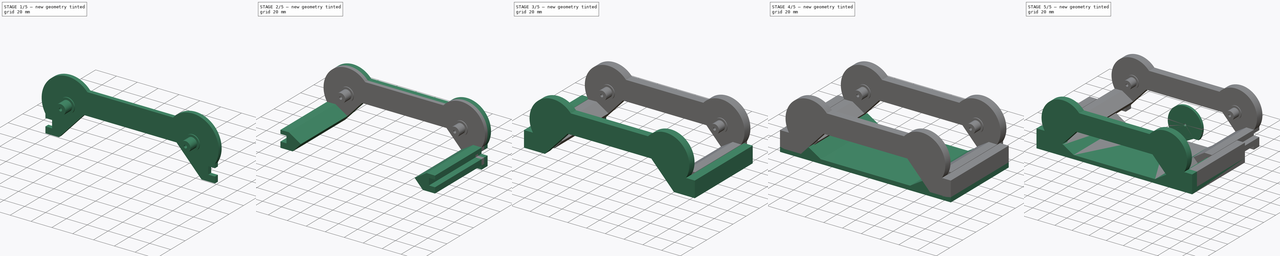
[diagram: build sequence overview — one tinted view per stage of 5, left to right]
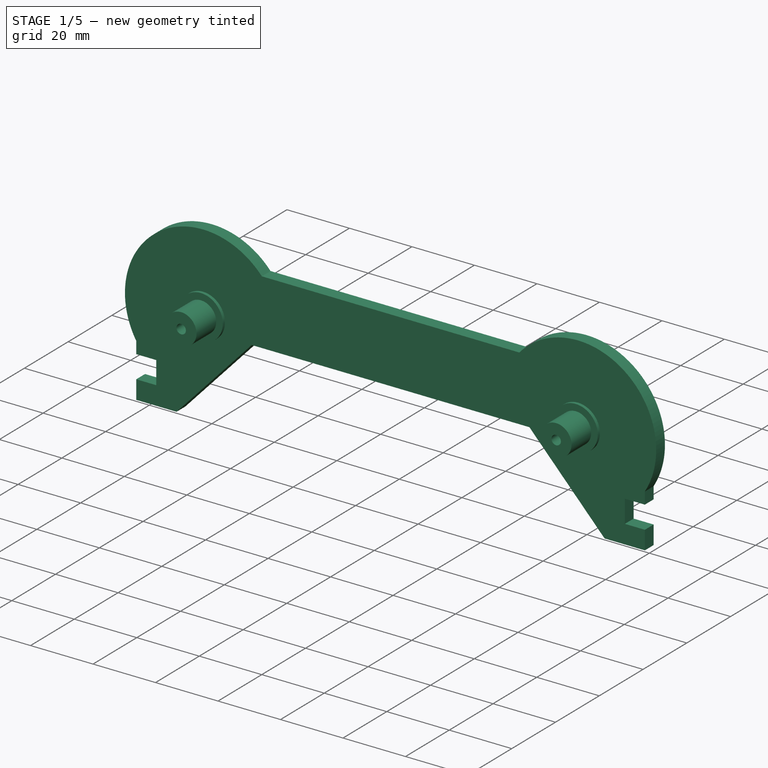
[diagram: stage 1 of 5 — iso view after this stage's code; geometry added in this stage tinted green]
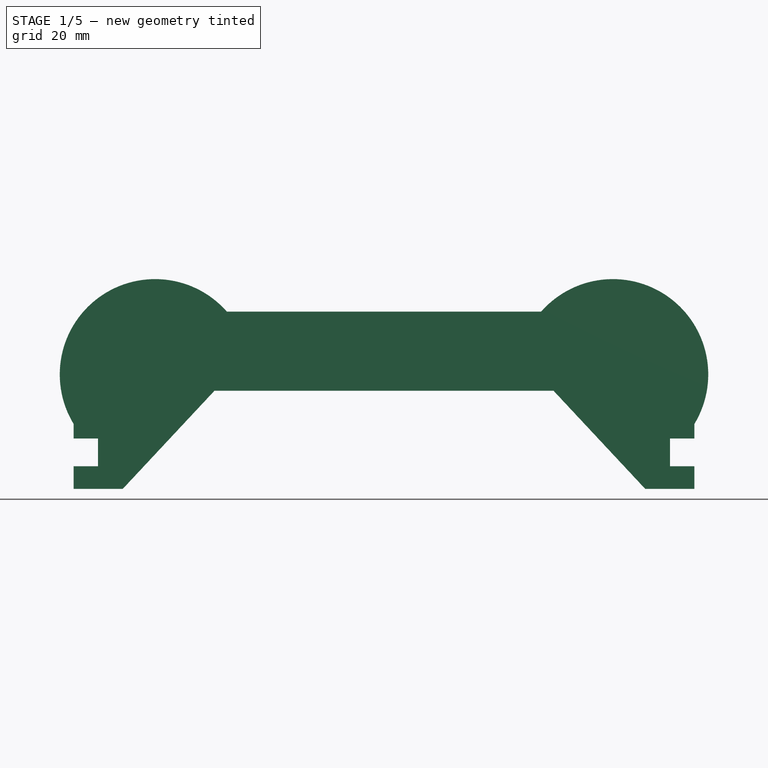
[diagram: stage 1 of 5 — front view after this stage's code; geometry added in this stage tinted green]
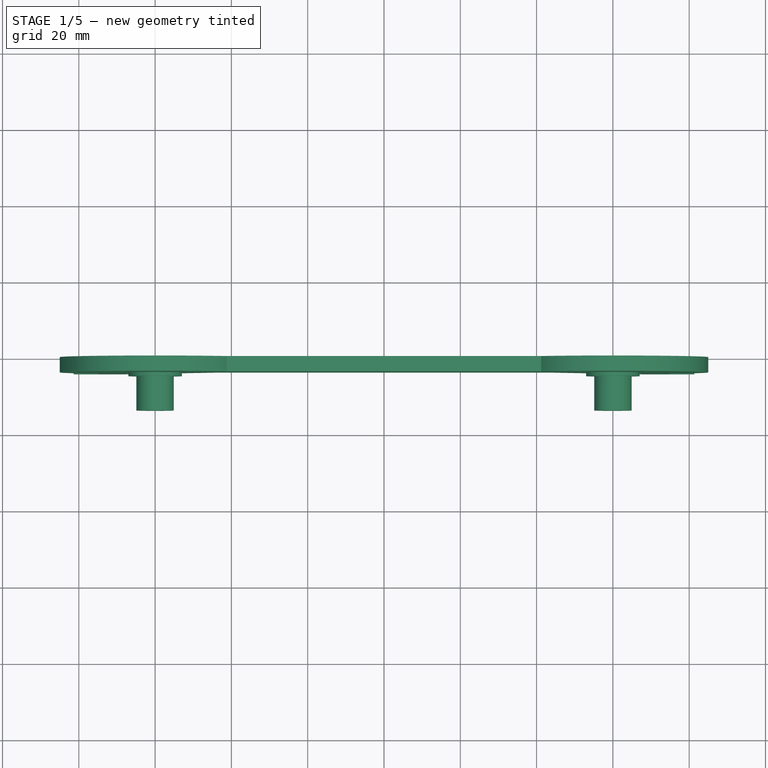
[diagram: stage 1 of 5 — top view after this stage's code; geometry added in this stage tinted green]
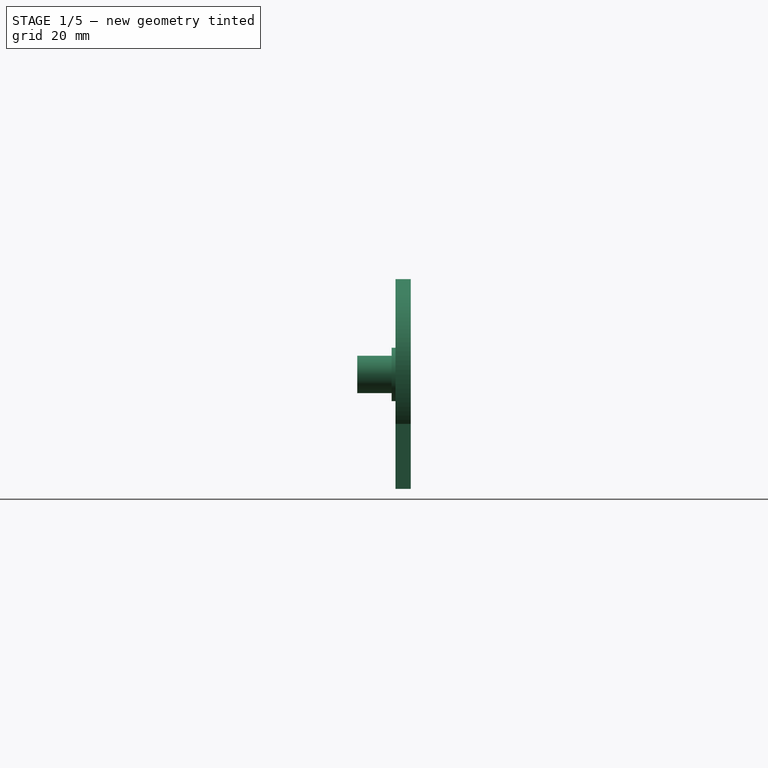
[diagram: stage 1 of 5 — right view after this stage's code; geometry added in this stage tinted green]
FCSTD DOCUMENT  (FreeCAD 0.19R24267 +99 (Git))
Label: 料架
License: All rights reserved
LicenseURL: http://en.wikipedia.org/wiki/All_rights_reserved
objects: Sketcher::SketchObject×21, PartDesign::Pad×17, PartDesign::Pocket×5, PartDesign::Body×4, Part::MultiFuse×1, App::MeasureDistance×1
note: 70 computed .brp shape members not serialized (recipe doc carries the construction recipe); baked Part::Feature solids carry a one-line shape summary decoded from their .brp

FEATURE [Sketcher::SketchObject] Sketch
  FullyConstrained = false
  MapMode = 5
  Placement = pos=(0,0,0) rot=(1,0,0;1.5708rad)
  Support = -> [XZ_Plane]
  sketch-geometry (12):
    g0: LineSegment StartX=-81.3773 StartY=17.038 StartZ=0 EndX=-81.3773 EndY=0 EndZ=0
    g1: LineSegment StartX=-81.3773 StartY=0 StartZ=0 EndX=-68.4867 EndY=0 EndZ=0
    g2: LineSegment StartX=-68.4867 StartY=0 StartZ=0 EndX=-44.4316 EndY=25.7451 EndZ=0
    g3: LineSegment StartX=-44.4316 StartY=25.7451 StartZ=0 EndX=0 EndY=25.7451 EndZ=0
    g4: LineSegment StartX=0 StartY=46.4809 StartZ=0 EndX=-41.2016 EndY=46.4809 EndZ=0
    g5: ArcOfCircle CenterX=-60 CenterY=30 CenterZ=0 NormalX=0 NormalY=0 NormalZ=1 AngleXU=0 Radius=25 StartAngle=0.719804 EndAngle=3.68666
    g6: LineSegment StartX=81.3773 StartY=17.038 StartZ=0 EndX=81.3773 EndY=0 EndZ=0
    g7: LineSegment StartX=81.3773 StartY=0 StartZ=0 EndX=68.4867 EndY=0 EndZ=0
    g8: LineSegment StartX=68.4867 StartY=0 StartZ=0 EndX=44.4316 EndY=25.7451 EndZ=0
    g9: LineSegment StartX=44.4316 StartY=25.7451 StartZ=0 EndX=0 EndY=25.7451 EndZ=0
    g10: LineSegment StartX=0 StartY=46.4809 StartZ=0 EndX=41.2016 EndY=46.4809 EndZ=0
    g11: ArcOfCircle CenterX=60 CenterY=30 CenterZ=0 NormalX=0 NormalY=0 NormalZ=1 AngleXU=0 Radius=25 StartAngle=5.73811 EndAngle=8.70497
  constraints (23):
    c: Coincident(g0,g1)
    c: PointOnObject(g1,g-1)
    c: Coincident(g1,g2)
    c: Coincident(g2,g3)
    c: Horizontal(g3)
    c: PointOnObject(g4,g-2)
    c: Horizontal(g4)
    c: Coincident(g5,g0)
    c: Coincident(g5,g4)
    c: DistanceY(g-1,g5) = 30
    c: Vertical(g0)
    c: Radius(g5) = 25
    c: PointOnObject(g0,g-1)
    c: DistanceX(g-2,g5) = -60
    c: Coincident(g6,g7)
    c: Coincident(g7,g8)
    c: Coincident(g8,g9)
    c: Horizontal(g9)
    c: Horizontal(g10)
    c: Coincident(g11,g6)
    c: Coincident(g11,g10)
    c: Vertical(g6)
    c: Radius(g11) = 25
FEATURE [PartDesign::Pad] Pad
  Direction = (1,1,1)
  Length = 4
  Length2 = 100
  Placement = pos=(0,0,0) rot=(1,0,0;1.5708rad)
  Profile = -> Sketch
  Type = 0
FEATURE [Sketcher::SketchObject] Sketch001
  ExternalGeometry = -> [Pad]
  FullyConstrained = false
  MapMode = 5
  Placement = pos=(0,-4,2.7e-15) rot=(1,0,0;1.5708rad)
  Support = -> [Pad]
  sketch-geometry (2):
    g0: Circle CenterX=-60 CenterY=30 CenterZ=0 NormalX=0 NormalY=0 NormalZ=1 AngleXU=0 Radius=7
    g1: Circle CenterX=60 CenterY=30 CenterZ=0 NormalX=0 NormalY=0 NormalZ=1 AngleXU=0 Radius=7
  constraints (3):
    c: Coincident(g0,g-3)
    c: Diameter(g0) = 14
    c: Diameter(g1) = 14
FEATURE [PartDesign::Pad] Pad001
  BaseFeature = -> Pad
  Direction = (1,1,1)
  Length = 1
  Length2 = 100
  Placement = pos=(0,0,0) rot=(1,0,0;1.5708rad)
  Profile = -> Sketch001
  Type = 0
FEATURE [Sketcher::SketchObject] Sketch002
  ExternalGeometry = -> [Pad001]
  FullyConstrained = false
  MapMode = 5
  Placement = pos=(-1e-16,-5,6.1e-15) rot=(1,0,0;1.5708rad)
  Support = -> [Pad001]
  sketch-geometry (2):
    g0: Circle CenterX=-60 CenterY=30 CenterZ=0 NormalX=0 NormalY=0 NormalZ=1 AngleXU=0 Radius=4.9
    g1: Circle CenterX=60 CenterY=30 CenterZ=0 NormalX=0 NormalY=0 NormalZ=1 AngleXU=0 Radius=4.9
  constraints (3):
    c: Coincident(g0,g-3)
    c: Diameter(g0) = 9.8
    c: Diameter(g1) = 9.8
FEATURE [PartDesign::Pad] Pad002
  BaseFeature = -> Pad001
  Direction = (1,1,1)
  Length = 9
  Length2 = 100
  Placement = pos=(0,0,0) rot=(1,0,0;1.5708rad)
  Profile = -> Sketch002
  Type = 0
FEATURE [Sketcher::SketchObject] Sketch003
  ExternalGeometry = -> [Pad002]
  FullyConstrained = false
  MapMode = 5
  Placement = pos=(0,-14,2.09e-14) rot=(1,0,0;1.5708rad)
  Support = -> [Pad002]
  sketch-geometry (2):
    g0: Circle CenterX=-60 CenterY=30 CenterZ=0 NormalX=0 NormalY=0 NormalZ=1 AngleXU=0 Radius=1.5
    g1: Circle CenterX=60 CenterY=30 CenterZ=0 NormalX=0 NormalY=0 NormalZ=1 AngleXU=0 Radius=1.5
  constraints (3):
    c: Coincident(g0,g-3)
    c: Diameter(g0) = 3
    c: Diameter(g1) = 3
FEATURE [PartDesign::Pocket] Pocket
  BaseFeature = -> Pad002
  Length = 5
  Length2 = 100
  Placement = pos=(0,0,0) rot=(1,0,0;1.5708rad)
  Profile = -> Sketch003
  Type = 0
FEATURE [Sketcher::SketchObject] Sketch004
  FullyConstrained = true
  MapMode = 5
  Placement = pos=(0,0,0) rot=(-1,0,0;1.5708rad)
  Support = -> [Pocket]
FEATURE [Sketcher::SketchObject] Sketch005
  FullyConstrained = false
  MapMode = 5
  Placement = pos=(0,-4,8e-15) rot=(1,0,0;1.5708rad)
  Support = -> [Pocket]
  sketch-geometry (8):
    g0: LineSegment StartX=-85.5072 StartY=13.2241 StartZ=0 EndX=-74.9789 EndY=13.2241 EndZ=0
    g1: LineSegment StartX=-74.9789 StartY=13.2241 StartZ=0 EndX=-74.9789 EndY=5.9525 EndZ=0
    g2: LineSegment StartX=-74.9789 StartY=5.9525 StartZ=0 EndX=-85.5072 EndY=5.9525 EndZ=0
    g3: LineSegment StartX=-85.5072 StartY=5.9525 StartZ=0 EndX=-85.5072 EndY=13.2241 EndZ=0
    g4: LineSegment StartX=85.5072 StartY=13.2241 StartZ=0 EndX=74.9789 EndY=13.2241 EndZ=0
    g5: LineSegment StartX=74.9789 StartY=13.2241 StartZ=0 EndX=74.9789 EndY=5.9525 EndZ=0
    g6: LineSegment StartX=74.9789 StartY=5.9525 StartZ=0 EndX=85.5072 EndY=5.9525 EndZ=0
    g7: LineSegment StartX=85.5072 StartY=5.9525 StartZ=0 EndX=85.5072 EndY=13.2241 EndZ=0
  constraints (16):
    c: Coincident(g0,g1)
    c: Coincident(g1,g2)
    c: Coincident(g2,g3)
    c: Coincident(g3,g0)
    c: Horizontal(g0)
    c: Horizontal(g2)
    c: Vertical(g1)
    c: Vertical(g3)
    c: Coincident(g4,g5)
    c: Coincident(g5,g6)
    c: Coincident(g6,g7)
    c: Coincident(g7,g4)
    c: Horizontal(g4)
    c: Horizontal(g6)
    c: Vertical(g5)
    c: Vertical(g7)
FEATURE [PartDesign::Pocket] Pocket001
  BaseFeature = -> Pocket
  Length = 5
  Length2 = 100
  Placement = pos=(0,0,0) rot=(1,0,0;1.5708rad)
  Profile = -> Sketch005
  Type = 0
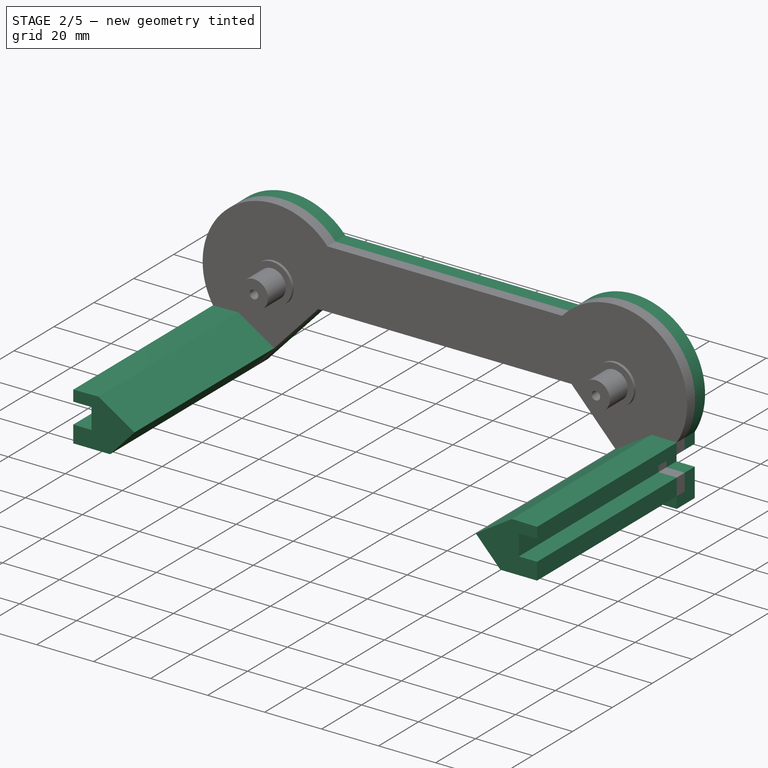
[diagram: stage 2 of 5 — iso view after this stage's code; geometry added in this stage tinted green]
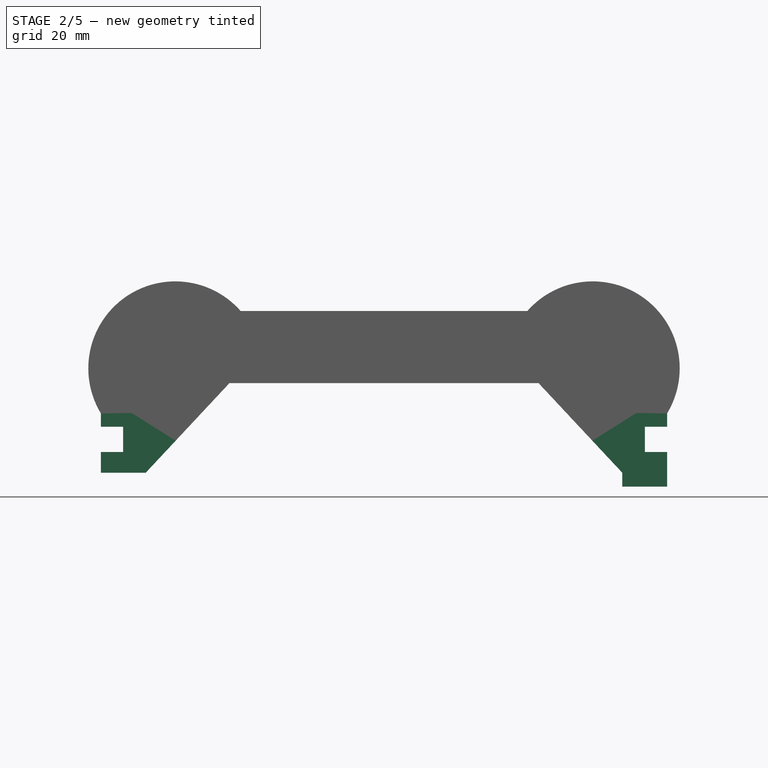
[diagram: stage 2 of 5 — front view after this stage's code; geometry added in this stage tinted green]
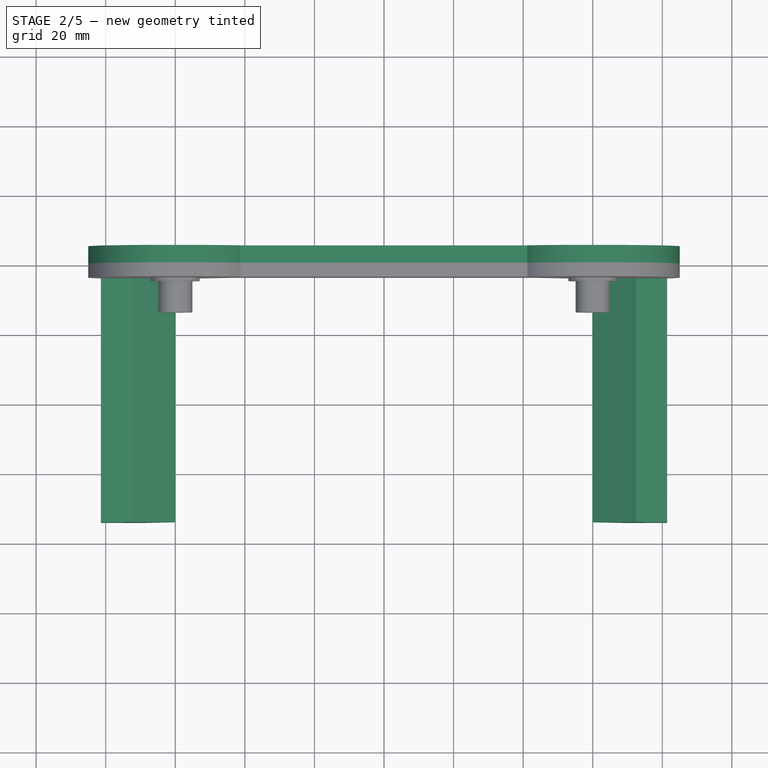
[diagram: stage 2 of 5 — top view after this stage's code; geometry added in this stage tinted green]
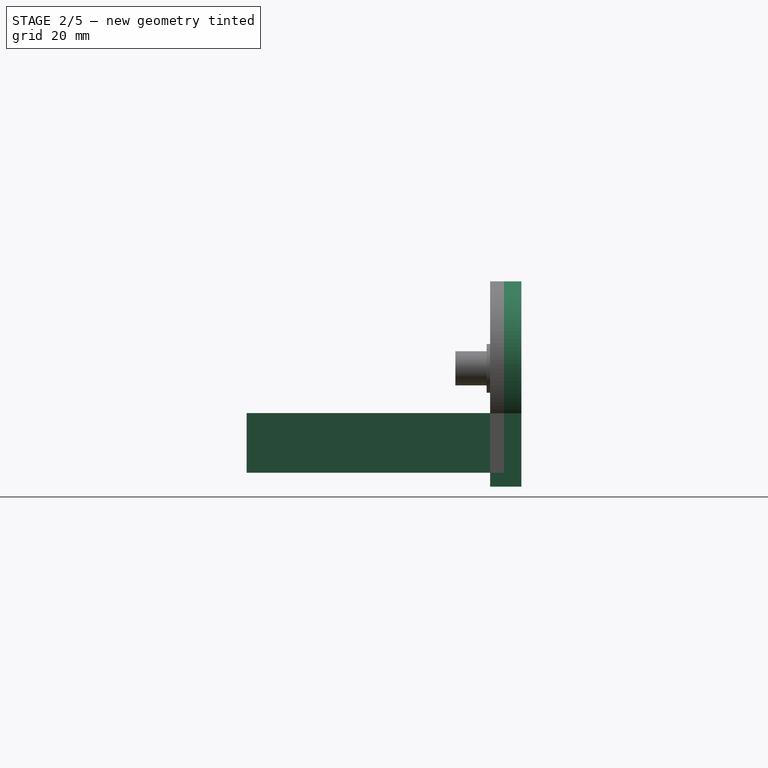
[diagram: stage 2 of 5 — right view after this stage's code; geometry added in this stage tinted green]
FEATURE [Sketcher::SketchObject] Sketch006
  FullyConstrained = true
  MapMode = 5
  Placement = pos=(0,-4,9.8e-15) rot=(1,0,0;1.5708rad)
  Support = -> [Pocket001]
FEATURE [Sketcher::SketchObject] Sketch007
  ExternalGeometry = -> [Pocket001]
  FullyConstrained = false
  MapMode = 5
  Placement = pos=(0,-4,9.8e-15) rot=(1,0,0;1.5708rad)
  Support = -> [Pocket001]
  sketch-geometry (19):
    g0: Circle CenterX=-60 CenterY=30 CenterZ=0 NormalX=0 NormalY=0 NormalZ=1 AngleXU=0 Radius=15
    g1: LineSegment StartX=-81.3773 StartY=17.038 StartZ=0 EndX=-81.3773 EndY=13.2241 EndZ=0
    g2: LineSegment StartX=-81.3773 StartY=13.2241 StartZ=0 EndX=-74.9789 EndY=13.2241 EndZ=0
    g3: LineSegment StartX=-74.9789 StartY=13.2241 StartZ=0 EndX=-74.9789 EndY=5.9525 EndZ=0
    g4: LineSegment StartX=-74.9789 StartY=5.9525 StartZ=0 EndX=-81.3773 EndY=5.9525 EndZ=0
    g5: LineSegment StartX=-81.3773 StartY=5.9525 StartZ=0 EndX=-81.3773 EndY=0 EndZ=0
    g6: LineSegment StartX=-81.3773 StartY=0 StartZ=0 EndX=-68.4992 EndY=0 EndZ=0
    g7: LineSegment StartX=-68.4992 StartY=0 StartZ=0 EndX=-59.8847 EndY=9.20634 EndZ=0
    g8: LineSegment StartX=-59.8847 StartY=9.20634 StartZ=0 EndX=-72.5528 EndY=17.1737 EndZ=0
    g9: LineSegment StartX=-72.5528 StartY=17.1737 StartZ=0 EndX=-81.3773 EndY=17.038 EndZ=0
    g10: LineSegment StartX=81.3773 StartY=17.038 StartZ=0 EndX=81.3773 EndY=13.2241 EndZ=0
    g11: LineSegment StartX=81.3773 StartY=13.2241 StartZ=0 EndX=74.9789 EndY=13.2241 EndZ=0
    g12: LineSegment StartX=74.9789 StartY=13.2241 StartZ=0 EndX=74.9789 EndY=5.9525 EndZ=0
    g13: LineSegment StartX=74.9789 StartY=5.9525 StartZ=0 EndX=81.3773 EndY=5.9525 EndZ=0
    g14: LineSegment StartX=81.3773 StartY=5.9525 StartZ=0 EndX=81.3773 EndY=0 EndZ=0
    g15: LineSegment StartX=81.3773 StartY=0 StartZ=0 EndX=68.4992 EndY=0 EndZ=0
    g16: LineSegment StartX=68.4992 StartY=0 StartZ=0 EndX=59.8847 EndY=9.20634 EndZ=0
    g17: LineSegment StartX=59.8847 StartY=9.20634 StartZ=0 EndX=72.5528 EndY=17.1737 EndZ=0
    g18: LineSegment StartX=72.5528 StartY=17.1737 StartZ=0 EndX=81.3773 EndY=17.038 EndZ=0
  constraints (28):
    c: Coincident(g0,g-5)
    c: Diameter(g0) = 30
    c: Coincident(g-6,g1)
    c: Coincident(g1,g-7)
    c: Coincident(g1,g2)
    c: Coincident(g2,g-8)
    c: Coincident(g2,g3)
    c: Coincident(g3,g-9)
    c: Coincident(g3,g4)
    c: Coincident(g4,g-10)
    c: Coincident(g4,g5)
    c: Coincident(g5,g-10)
    c: Coincident(g5,g6)
    c: PointOnObject(g6,g-1)
    c: Coincident(g6,g7)
    c: Coincident(g7,g8)
    c: Coincident(g8,g9)
    c: Coincident(g9,g1)
    c: PointOnObject(g7,g-11)
    c: Coincident(g10,g11)
    c: Coincident(g11,g12)
    c: Coincident(g12,g13)
    c: Coincident(g13,g14)
    c: Coincident(g14,g15)
    c: Coincident(g15,g16)
    c: Coincident(g16,g17)
    c: Coincident(g17,g18)
    c: Coincident(g18,g10)
FEATURE [PartDesign::Pad] Pad003
  BaseFeature = -> Pocket001
  Direction = (1,1,1)
  Length = 70
  Length2 = 100
  Placement = pos=(0,0,0) rot=(1,0,0;1.5708rad)
  Profile = -> Sketch007
  Type = 0
FEATURE [PartDesign::Pad] Pad004
  BaseFeature = -> Pad003
  Direction = (1,1,1)
  Length = 5
  Length2 = 100
  Placement = pos=(0,0,0) rot=(1,0,0;1.5708rad)
  Profile = -> Pad003 [Face4]
  Type = 0
FEATURE [PartDesign::Pad] Pad014
  BaseFeature = -> Pad004
  Direction = (1,1,1)
  Length = 4
  Length2 = 100
  Placement = pos=(0,0,0) rot=(1,0,0;1.5708rad)
  Profile = -> Pad004 [Face44]
  Type = 0
FEATURE [PartDesign::Pad] Pad015
  BaseFeature = -> Pad014
  Direction = (1,1,1)
  Length = 4
  Length2 = 100
  Placement = pos=(0,0,0) rot=(1,0,0;1.5708rad)
  Profile = -> Pad014 [Face31]
  Type = 0
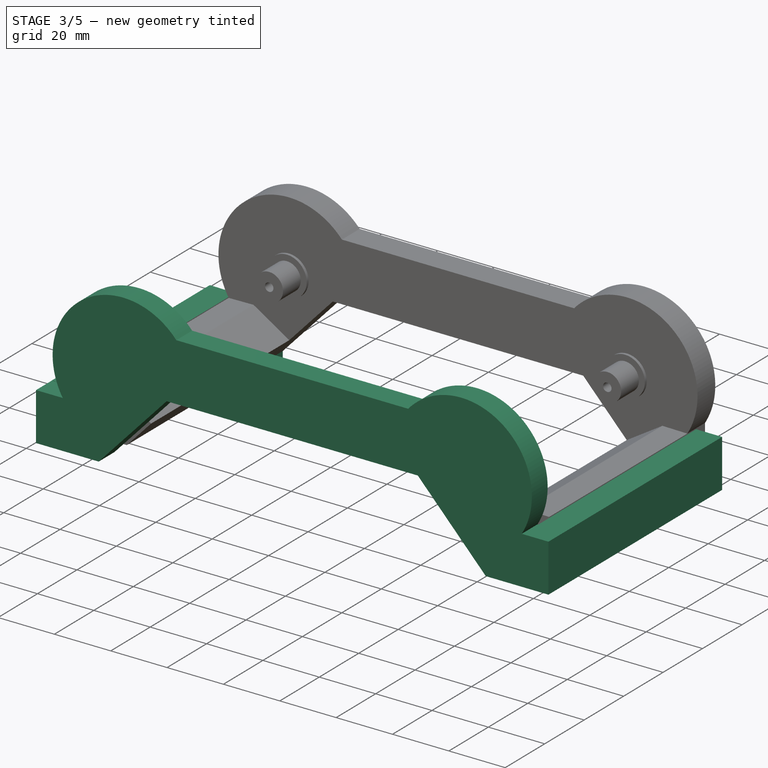
[diagram: stage 3 of 5 — iso view after this stage's code; geometry added in this stage tinted green]
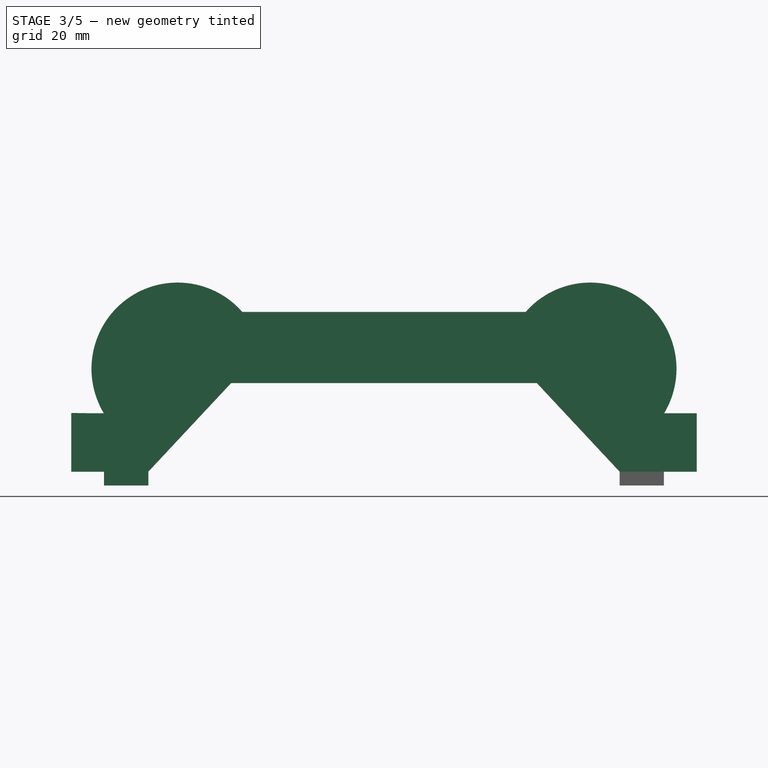
[diagram: stage 3 of 5 — front view after this stage's code; geometry added in this stage tinted green]
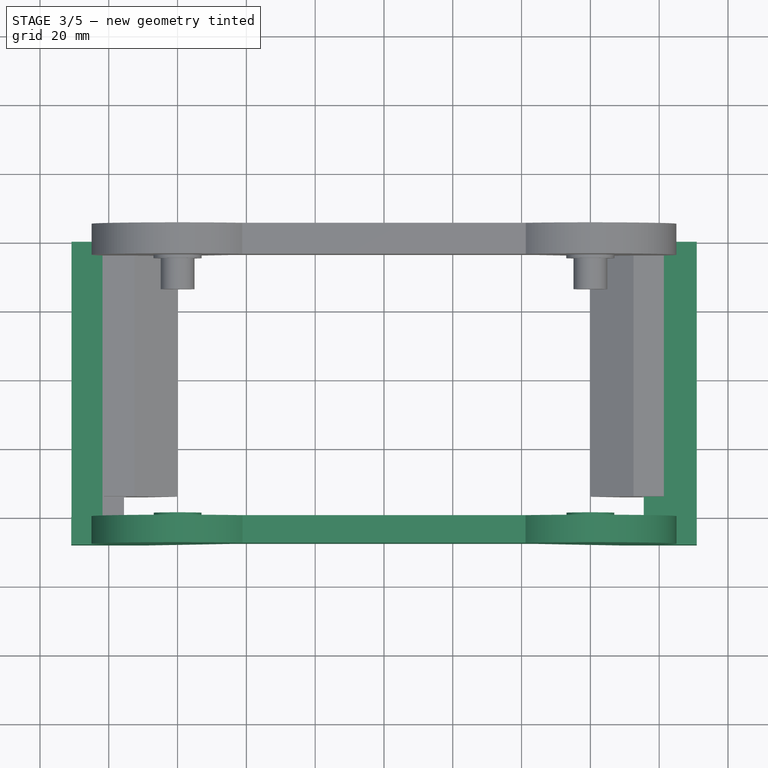
[diagram: stage 3 of 5 — top view after this stage's code; geometry added in this stage tinted green]
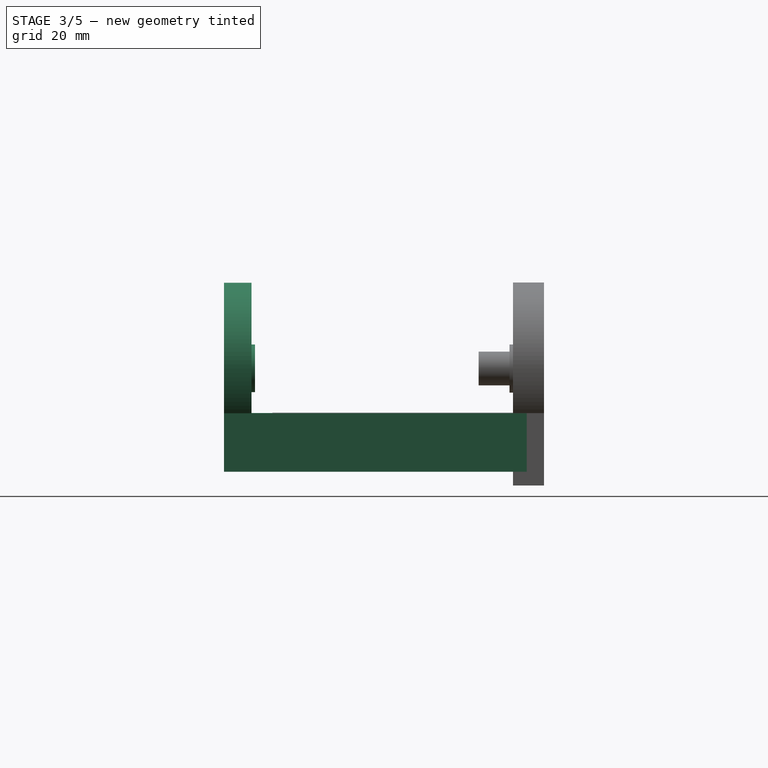
[diagram: stage 3 of 5 — right view after this stage's code; geometry added in this stage tinted green]
FEATURE [Sketcher::SketchObject] Sketch008
  FullyConstrained = false
  MapMode = 5
  Placement = pos=(0,0,0) rot=(1,0,0;1.5708rad)
  Support = -> [XZ_Plane001]
  sketch-geometry (8):
    g0: LineSegment StartX=-81.8281 StartY=16.9417 StartZ=0 EndX=-81.8281 EndY=12.7846 EndZ=0
    g1: LineSegment StartX=-81.8281 StartY=12.7846 StartZ=0 EndX=-75.5913 EndY=12.7846 EndZ=0
    g2: LineSegment StartX=-75.5913 StartY=12.7846 StartZ=0 EndX=-75.5913 EndY=6.48482 EndZ=0
    g3: LineSegment StartX=-75.5913 StartY=6.48482 StartZ=0 EndX=-81.8639 EndY=6.48482 EndZ=0
    g4: LineSegment StartX=-81.8639 StartY=6.48482 StartZ=0 EndX=-81.8639 EndY=0.165597 EndZ=0
    g5: LineSegment StartX=-81.8639 StartY=0.165597 StartZ=0 EndX=-90.8534 EndY=0.165597 EndZ=0
    g6: LineSegment StartX=-90.8534 StartY=0.165597 StartZ=0 EndX=-90.8534 EndY=17.0789 EndZ=0
    g7: LineSegment StartX=-90.8534 StartY=17.0789 StartZ=0 EndX=-81.8281 EndY=16.9417 EndZ=0
  constraints (15):
    c: Vertical(g0)
    c: Coincident(g0,g1)
    c: Horizontal(g1)
    c: Coincident(g1,g2)
    c: Vertical(g2)
    c: Coincident(g2,g3)
    c: Horizontal(g3)
    c: Coincident(g3,g4)
    c: Vertical(g4)
    c: Coincident(g4,g5)
    c: Horizontal(g5)
    c: Coincident(g5,g6)
    c: Vertical(g6)
    c: Coincident(g6,g7)
    c: Coincident(g7,g0)
FEATURE [PartDesign::Pad] Pad005
  Direction = (1,1,1)
  Length = 80
  Length2 = 100
  Placement = pos=(0,0,0) rot=(1,0,0;1.5708rad)
  Profile = -> Sketch008
  Type = 0
FEATURE [Sketcher::SketchObject] Sketch009
  FullyConstrained = false
  MapMode = 5
  Placement = pos=(0,-80,5.33e-14) rot=(1,0,0;1.5708rad)
  Support = -> [Pad005]
  sketch-geometry (14):
    g0: LineSegment StartX=-90.9189 StartY=0 StartZ=0 EndX=-90.9189 EndY=16.9936 EndZ=0
    g1: LineSegment StartX=-90.9189 StartY=16.9936 StartZ=0 EndX=-81.4474 EndY=16.9936 EndZ=0
    g2: ArcOfCircle CenterX=-60.0171 CenterY=29.9008 CenterZ=0 NormalX=0 NormalY=0 NormalZ=1 AngleXU=0 Radius=25.017 StartAngle=0.715544 EndAngle=3.68369
    g3: LineSegment StartX=-41.1359 StartY=46.3127 StartZ=0 EndX=0 EndY=46.3127 EndZ=0
    g4: LineSegment StartX=0 StartY=25.8184 StartZ=0 EndX=-44.5631 EndY=25.8184 EndZ=0
    g5: LineSegment StartX=-44.5631 StartY=25.8184 StartZ=0 EndX=-68.6925 EndY=0 EndZ=0
    g6: LineSegment StartX=-68.6925 StartY=0 StartZ=0 EndX=-90.9189 EndY=0 EndZ=0
    g7: LineSegment StartX=90.9189 StartY=0 StartZ=0 EndX=90.9189 EndY=16.9936 EndZ=0
    g8: LineSegment StartX=90.9189 StartY=16.9936 StartZ=0 EndX=81.4474 EndY=16.9936 EndZ=0
    g9: ArcOfCircle CenterX=60.0171 CenterY=29.9008 CenterZ=0 NormalX=0 NormalY=0 NormalZ=1 AngleXU=0 Radius=25.017 StartAngle=5.74108 EndAngle=8.70923
    g10: LineSegment StartX=41.1359 StartY=46.3127 StartZ=0 EndX=0 EndY=46.3127 EndZ=0
    g11: LineSegment StartX=0 StartY=25.8184 StartZ=0 EndX=44.5631 EndY=25.8184 EndZ=0
    g12: LineSegment StartX=44.5631 StartY=25.8184 StartZ=0 EndX=68.6925 EndY=0 EndZ=0
    g13: LineSegment StartX=68.6925 StartY=0 StartZ=0 EndX=90.9189 EndY=0 EndZ=0
  constraints (24):
    c: Vertical(g0)
    c: Coincident(g0,g1)
    c: Horizontal(g1)
    c: Coincident(g2,g3)
    c: PointOnObject(g3,g-2)
    c: Horizontal(g3)
    c: Horizontal(g4)
    c: Coincident(g4,g5)
    c: PointOnObject(g5,g-1)
    c: Coincident(g5,g6)
    c: Coincident(g6,g0)
    c: Horizontal(g6)
    c: Coincident(g1,g2)
    c: Vertical(g7)
    c: Coincident(g7,g8)
    c: Horizontal(g8)
    c: Coincident(g9,g10)
    c: Horizontal(g10)
    c: Horizontal(g11)
    c: Coincident(g11,g12)
    c: Coincident(g12,g13)
    c: Coincident(g13,g7)
    c: Horizontal(g13)
    c: Coincident(g8,g9)
FEATURE [PartDesign::Pad] Pad006
  BaseFeature = -> Pad005
  Direction = (1,1,1)
  Length = 8
  Length2 = 100
  Placement = pos=(0,0,0) rot=(1,0,0;1.5708rad)
  Profile = -> Sketch009
  Type = 0
FEATURE [Sketcher::SketchObject] Sketch010
  FullyConstrained = false
  MapMode = 5
  Placement = pos=(0,-80,1.037e-13) rot=(-1,0,0;1.5708rad)
  Support = -> [Pad006]
  sketch-geometry (8):
    g0: LineSegment StartX=81.8383 StartY=0 StartZ=0 EndX=81.8383 EndY=-6.34079 EndZ=0
    g1: LineSegment StartX=81.8383 StartY=-6.34079 StartZ=0 EndX=75.5158 EndY=-6.34079 EndZ=0
    g2: LineSegment StartX=75.5158 StartY=-6.34079 StartZ=0 EndX=75.5158 EndY=-12.7137 EndZ=0
    g3: LineSegment StartX=75.5158 StartY=-12.7137 StartZ=0 EndX=81.7221 EndY=-12.7137 EndZ=0
    g4: LineSegment StartX=81.7221 StartY=-12.7137 StartZ=0 EndX=81.7221 EndY=-16.9928 EndZ=0
    g5: LineSegment StartX=81.7221 StartY=-16.9928 StartZ=0 EndX=90.9283 EndY=-16.9928 EndZ=0
    g6: LineSegment StartX=90.9283 StartY=-16.9928 StartZ=0 EndX=90.9283 EndY=0 EndZ=0
    g7: LineSegment StartX=90.9283 StartY=0 StartZ=0 EndX=81.8383 EndY=0 EndZ=0
  constraints (17):
    c: PointOnObject(g0,g-1)
    c: Vertical(g0)
    c: Coincident(g0,g1)
    c: Horizontal(g1)
    c: Coincident(g1,g2)
    c: Vertical(g2)
    c: Coincident(g2,g3)
    c: Horizontal(g3)
    c: Coincident(g3,g4)
    c: Vertical(g4)
    c: Coincident(g4,g5)
    c: Horizontal(g5)
    c: Coincident(g5,g6)
    c: PointOnObject(g6,g-1)
    c: Vertical(g6)
    c: Coincident(g6,g7)
    c: Coincident(g7,g0)
FEATURE [PartDesign::Pad] Pad007
  BaseFeature = -> Pad006
  Direction = (1,1,1)
  Length = 80
  Length2 = 100
  Placement = pos=(0,0,0) rot=(1,0,0;1.5708rad)
  Profile = -> Sketch010
  Type = 0
FEATURE [Sketcher::SketchObject] Sketch011
  FullyConstrained = false
  MapMode = 5
  Placement = pos=(0,-80,1.392e-13) rot=(-1,0,0;1.5708rad)
  Support = -> [Pad007]
  sketch-geometry (2):
    g0: Circle CenterX=-59.984 CenterY=-30.0589 CenterZ=0 NormalX=0 NormalY=0 NormalZ=1 AngleXU=0 Radius=6.93777
    g1: Circle CenterX=59.984 CenterY=-30.0589 CenterZ=0 NormalX=0 NormalY=0 NormalZ=1 AngleXU=0 Radius=6.93777
FEATURE [PartDesign::Pad] Pad008
  BaseFeature = -> Pad007
  Direction = (1,1,1)
  Length = 1
  Length2 = 100
  Placement = pos=(0,0,0) rot=(1,0,0;1.5708rad)
  Profile = -> Sketch011
  Type = 0
FEATURE [PartDesign::Pad] Pad016
  BaseFeature = -> Pad015
  Direction = (1,1,1)
  Length = 4
  Length2 = 100
  Placement = pos=(0,0,0) rot=(1,0,0;1.5708rad)
  Profile = -> Pad015 [Face46,Face36]
  Reversed = true
  Type = 0
FEATURE [PartDesign::Body] Body
  Group = -> [Sketch,Pad,Sketch001,Pad001,Sketch002,Pad002,Sketch003,Pocket,Sketch004,Sketch005,Pocket001,Sketch006,Sketch007,Pad003,Pad004,Pad014,Pad015,Pad016]
  Origin = -> Origin
  Tip = -> Pad016
FEATURE [App::MeasureDistance] Distance  label="Distance: 121.67 mm"
  Distance = 121.666
  P1 = (-59.1562,-5,36.949)
  P2 = (62.4984,-4.00001,38.3186)
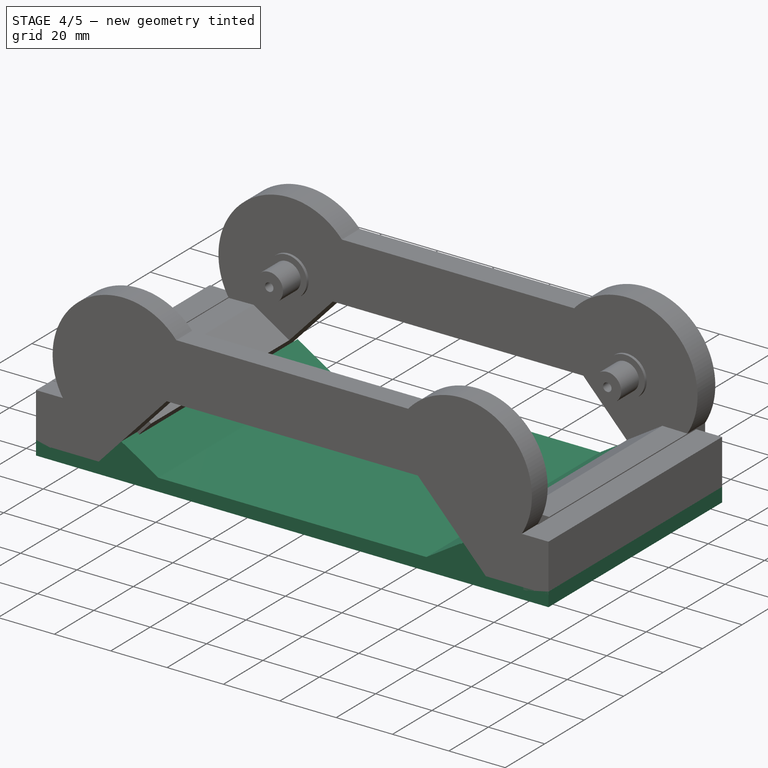
[diagram: stage 4 of 5 — iso view after this stage's code; geometry added in this stage tinted green]
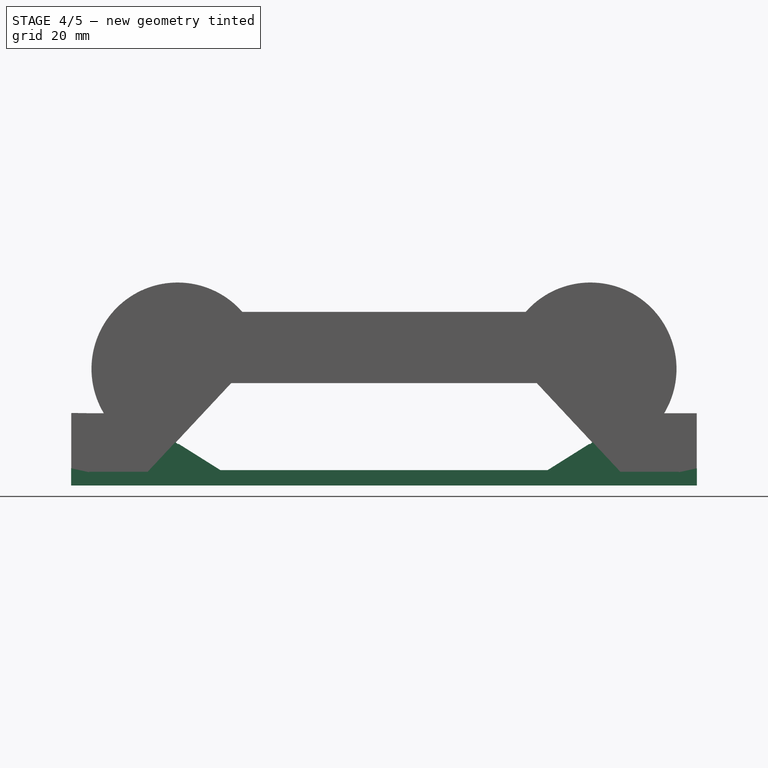
[diagram: stage 4 of 5 — front view after this stage's code; geometry added in this stage tinted green]
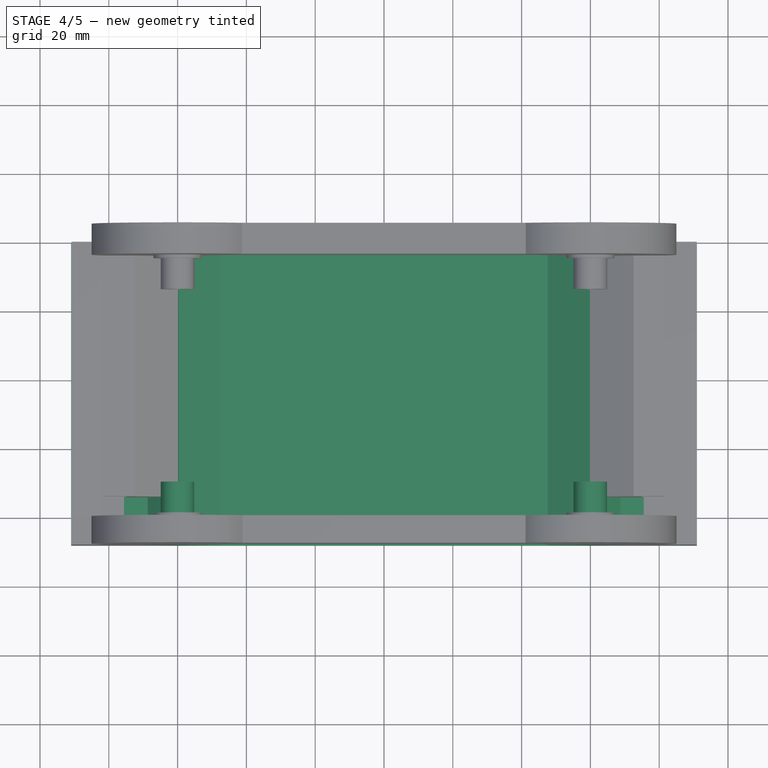
[diagram: stage 4 of 5 — top view after this stage's code; geometry added in this stage tinted green]
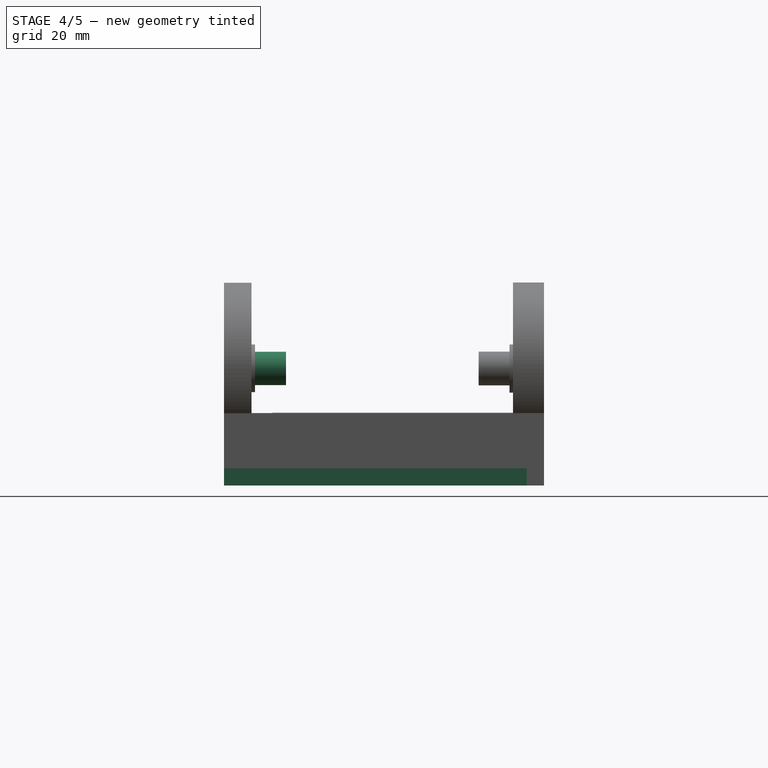
[diagram: stage 4 of 5 — right view after this stage's code; geometry added in this stage tinted green]
FEATURE [Sketcher::SketchObject] Sketch012
  FullyConstrained = false
  MapMode = 5
  Placement = pos=(0,-79,2.219e-13) rot=(-1,0,0;1.5708rad)
  Support = -> [Pad008]
  sketch-geometry (2):
    g0: Circle CenterX=-60.0568 CenterY=-30.0048 CenterZ=0 NormalX=0 NormalY=0 NormalZ=1 AngleXU=0 Radius=4.8493
    g1: Circle CenterX=59.9717 CenterY=-30.0243 CenterZ=0 NormalX=0 NormalY=0 NormalZ=1 AngleXU=0 Radius=4.84541
FEATURE [PartDesign::Pad] Pad009
  BaseFeature = -> Pad008
  Direction = (1,1,1)
  Length = 9
  Length2 = 100
  Placement = pos=(0,0,0) rot=(1,0,0;1.5708rad)
  Profile = -> Sketch012
  Type = 0
FEATURE [Sketcher::SketchObject] Sketch013
  FullyConstrained = false
  MapMode = 5
  Placement = pos=(6.84e-14,-70,1.495e-13) rot=(-1,0,0;1.5708rad)
  Support = -> [Pad009]
  sketch-geometry (2):
    g0: Circle CenterX=-60.0006 CenterY=-29.9705 CenterZ=0 NormalX=0 NormalY=0 NormalZ=1 AngleXU=0 Radius=1.43178
    g1: Circle CenterX=60.0149 CenterY=-30.003 CenterZ=0 NormalX=0 NormalY=0 NormalZ=1 AngleXU=0 Radius=1.47628
FEATURE [PartDesign::Pocket] Pocket002
  BaseFeature = -> Pad009
  Length = 5
  Length2 = 100
  Placement = pos=(0,0,0) rot=(1,0,0;1.5708rad)
  Profile = -> Sketch013
  Type = 0
FEATURE [Sketcher::SketchObject] Sketch017
  FullyConstrained = false
  MapMode = 5
  Placement = pos=(0,0,0) rot=(1,0,0;1.5708rad)
  Support = -> [XZ_Plane003]
  sketch-geometry (16):
    g0: LineSegment StartX=-90.9361 StartY=0.998925 StartZ=0 EndX=-81.9126 EndY=0.998925 EndZ=0
    g1: LineSegment StartX=-81.9126 StartY=0.998925 StartZ=0 EndX=-81.9126 EndY=-0.980707 EndZ=0
    g2: LineSegment StartX=-81.9126 StartY=-0.980707 StartZ=0 EndX=-68.6581 EndY=-0.980707 EndZ=0
    g3: LineSegment StartX=-68.6581 StartY=-0.980707 StartZ=0 EndX=-59.702 EndY=8.09197 EndZ=0
    g4: LineSegment StartX=-59.702 StartY=8.09197 StartZ=0 EndX=-47.5744 EndY=0.478784 EndZ=0
    g5: LineSegment StartX=-47.5744 StartY=0.478784 StartZ=0 EndX=0 EndY=0.478784 EndZ=0
    g6: LineSegment StartX=-90.9361 StartY=0.998925 StartZ=0 EndX=-90.9361 EndY=-4.00107 EndZ=0
    g7: LineSegment StartX=-90.9361 StartY=-4.00107 StartZ=0 EndX=0 EndY=-4.00107 EndZ=0
    g8: LineSegment StartX=90.9361 StartY=0.998925 StartZ=0 EndX=81.9126 EndY=0.998925 EndZ=0
    g9: LineSegment StartX=81.9126 StartY=0.998925 StartZ=0 EndX=81.9126 EndY=-0.980707 EndZ=0
    g10: LineSegment StartX=81.9126 StartY=-0.980707 StartZ=0 EndX=68.6581 EndY=-0.980707 EndZ=0
    g11: LineSegment StartX=68.6581 StartY=-0.980707 StartZ=0 EndX=59.702 EndY=8.09197 EndZ=0
    g12: LineSegment StartX=59.702 StartY=8.09197 StartZ=0 EndX=47.5744 EndY=0.478784 EndZ=0
    g13: LineSegment StartX=47.5744 StartY=0.478784 StartZ=0 EndX=0 EndY=0.478784 EndZ=0
    g14: LineSegment StartX=90.9361 StartY=0.998925 StartZ=0 EndX=90.9361 EndY=-4.00107 EndZ=0
    g15: LineSegment StartX=90.9361 StartY=-4.00107 StartZ=0 EndX=0 EndY=-4.00107 EndZ=0
  constraints (29):
    c: Horizontal(g0)
    c: Coincident(g0,g1)
    c: Vertical(g1)
    c: Coincident(g1,g2)
    c: Horizontal(g2)
    c: Coincident(g2,g3)
    c: Coincident(g3,g4)
    c: Coincident(g4,g5)
    c: Horizontal(g5)
    c: PointOnObject(g5,g-2)
    c: Coincident(g0,g6)
    c: Vertical(g6)
    c: Coincident(g6,g7)
    c: Horizontal(g7)
    c: Distance(g6) = 5
    c: Horizontal(g8)
    c: Coincident(g8,g9)
    c: Vertical(g9)
    c: Coincident(g9,g10)
    c: Horizontal(g10)
    c: Coincident(g10,g11)
    c: Coincident(g11,g12)
    c: Coincident(g12,g13)
    c: Horizontal(g13)
    c: Coincident(g8,g14)
    c: Vertical(g14)
    c: Coincident(g14,g15)
    c: Horizontal(g15)
    c: Distance(g14) = 5
FEATURE [PartDesign::Pad] Pad012
  Direction = (1,1,1)
  Length = 88
  Length2 = 100
  Placement = pos=(0,0,0) rot=(1,0,0;1.5708rad)
  Profile = -> Sketch017
  Type = 0
FEATURE [Sketcher::SketchObject] Sketch018
  FullyConstrained = true
  MapMode = 5
  Placement = pos=(0,-88,5.86e-14) rot=(1,0,0;1.5708rad)
  Support = -> [Pad012]
FEATURE [PartDesign::Body] Body003
  Group = -> [Sketch017,Pad012,Sketch018]
  Origin = -> Origin003
  Placement = pos=(0,-41.7,0) rot=(0,0,1;0rad)
  Tip = -> Pad012
FEATURE [Sketcher::SketchObject] Sketch019
  FullyConstrained = false
  MapMode = 5
  Placement = pos=(0,-88,2.704e-13) rot=(1,0,0;1.5708rad)
  Support = -> [Pocket002]
  sketch-geometry (10):
    g0: LineSegment StartX=-85.7021 StartY=5.40292 StartZ=0 EndX=-85.7021 EndY=-2.27256 EndZ=0
    g1: LineSegment StartX=-85.7021 StartY=-2.27256 StartZ=0 EndX=-60.3219 EndY=-2.27256 EndZ=0
    g2: LineSegment StartX=-60.3219 StartY=-2.27256 StartZ=0 EndX=-57.4564 EndY=6.22163 EndZ=0
    g3: LineSegment StartX=-57.4564 StartY=6.22163 StartZ=0 EndX=-65.3365 EndY=12.055 EndZ=0
    g4: LineSegment StartX=-65.3365 StartY=12.055 StartZ=0 EndX=-85.7021 EndY=5.40292 EndZ=0
    g5: LineSegment StartX=85.7021 StartY=5.40292 StartZ=0 EndX=85.7021 EndY=-2.27256 EndZ=0
    g6: LineSegment StartX=85.7021 StartY=-2.27256 StartZ=0 EndX=60.3219 EndY=-2.27256 EndZ=0
    g7: LineSegment StartX=60.3219 StartY=-2.27256 StartZ=0 EndX=57.4564 EndY=6.22163 EndZ=0
    g8: LineSegment StartX=57.4564 StartY=6.22163 StartZ=0 EndX=65.3365 EndY=12.055 EndZ=0
    g9: LineSegment StartX=65.3365 StartY=12.055 StartZ=0 EndX=85.7021 EndY=5.40292 EndZ=0
  constraints (14):
    c: Vertical(g0)
    c: Coincident(g0,g1)
    c: Horizontal(g1)
    c: Coincident(g1,g2)
    c: Coincident(g2,g3)
    c: Coincident(g3,g4)
    c: Coincident(g4,g0)
    c: Vertical(g5)
    c: Coincident(g5,g6)
    c: Horizontal(g6)
    c: Coincident(g6,g7)
    c: Coincident(g7,g8)
    c: Coincident(g8,g9)
    c: Coincident(g9,g5)
FEATURE [PartDesign::Pad] Pad013
  BaseFeature = -> Pocket002
  Direction = (1,1,1)
  Length = 8
  Length2 = 100
  Placement = pos=(0,0,0) rot=(1,0,0;1.5708rad)
  Profile = -> Sketch019
  Reversed = true
  Type = 0
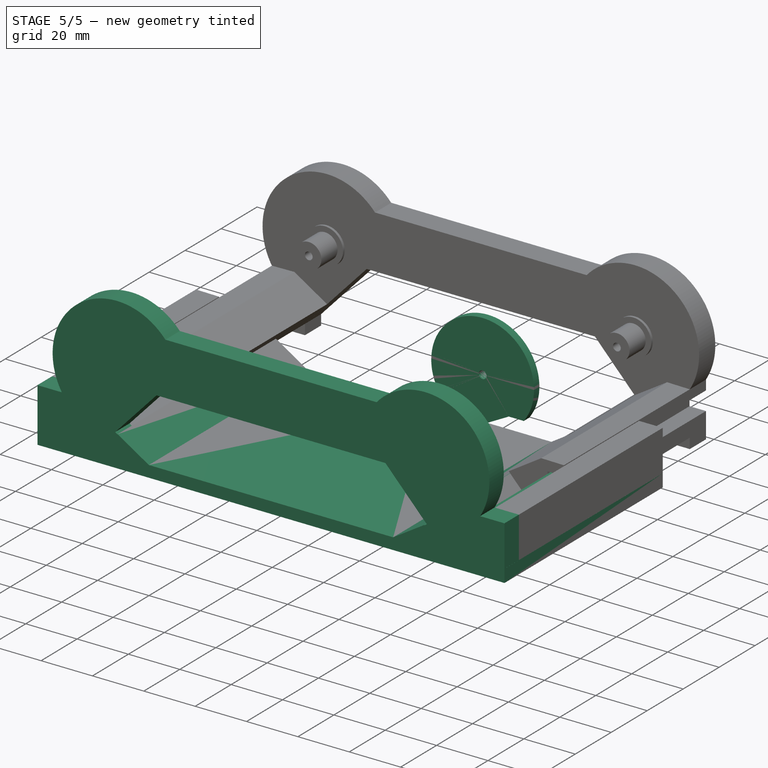
[diagram: stage 5 of 5 — iso view after this stage's code; geometry added in this stage tinted green]
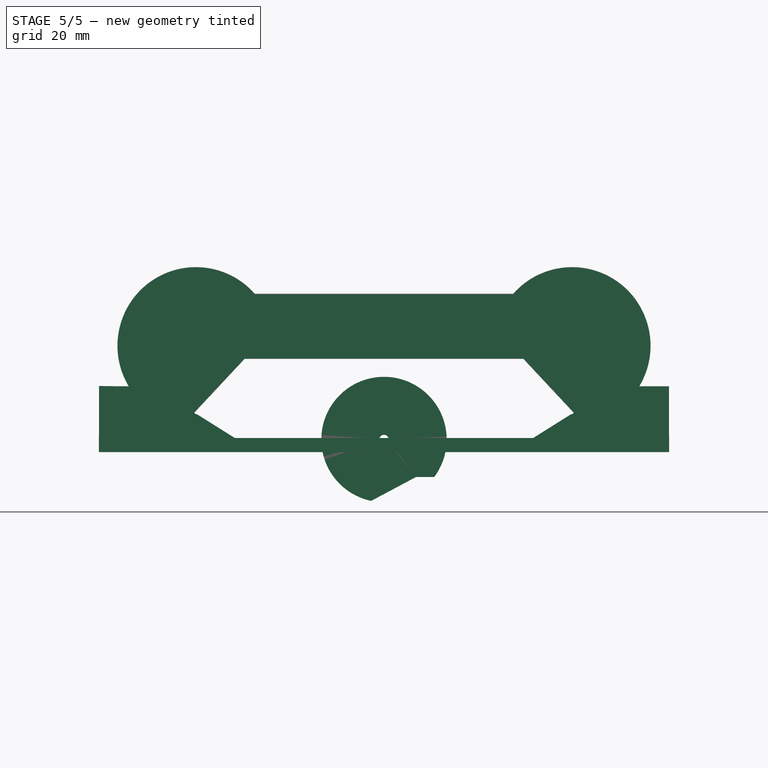
[diagram: stage 5 of 5 — front view after this stage's code; geometry added in this stage tinted green]
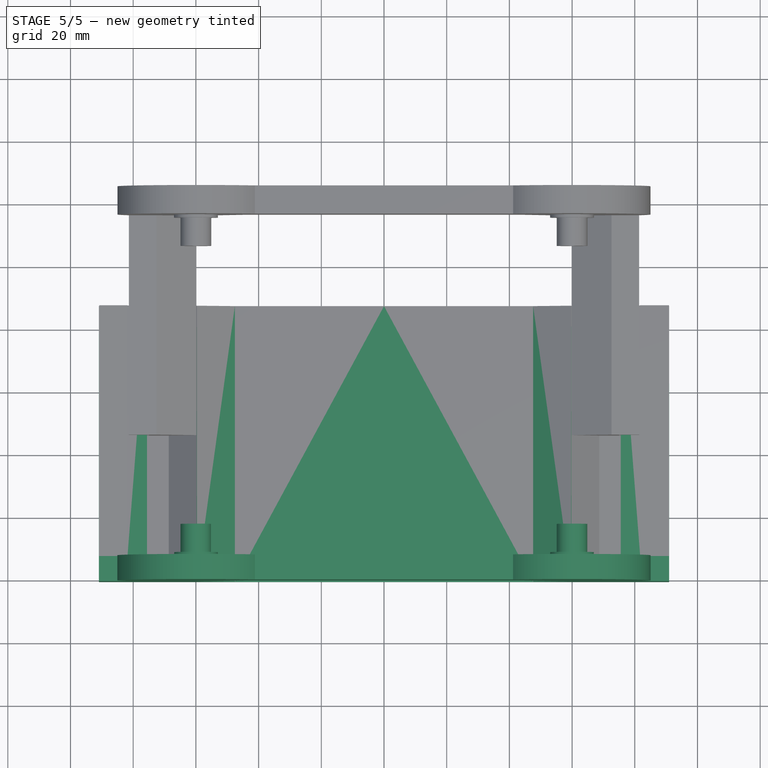
[diagram: stage 5 of 5 — top view after this stage's code; geometry added in this stage tinted green]
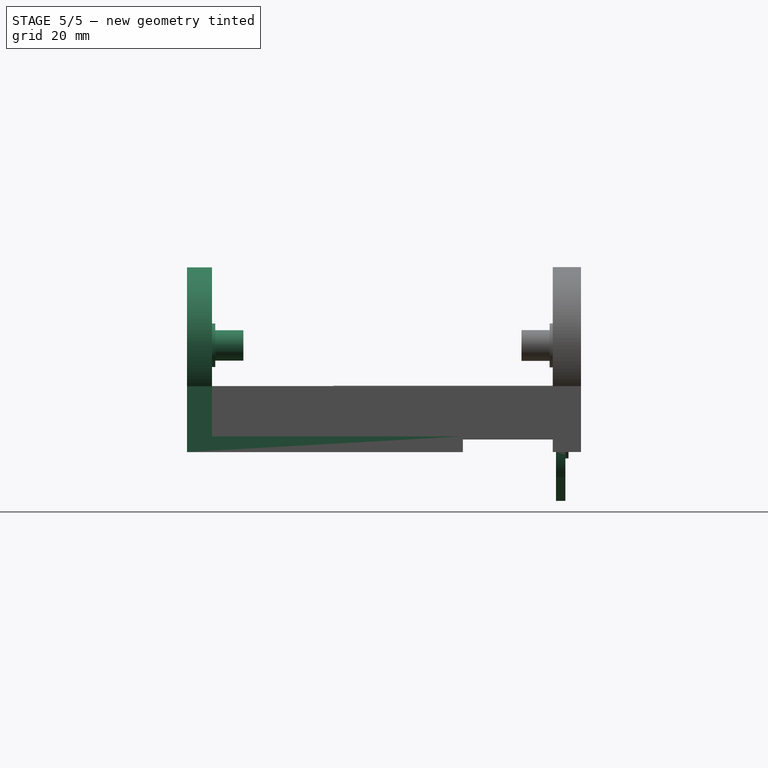
[diagram: stage 5 of 5 — right view after this stage's code; geometry added in this stage tinted green]
FEATURE [Sketcher::SketchObject] Sketch014
  FullyConstrained = true
  MapMode = 5
  Placement = pos=(0,0,0) rot=(1,0,0;1.5708rad)
  Support = -> [XZ_Plane002]
  sketch-geometry (1):
    g0: Circle CenterX=0 CenterY=0 CenterZ=0 NormalX=0 NormalY=0 NormalZ=1 AngleXU=0 Radius=20
  constraints (2):
    c: Coincident(g0,g-1)
    c: Diameter(g0) = 40
FEATURE [PartDesign::Pad] Pad010
  Direction = (1,1,1)
  Length = 3
  Length2 = 100
  Placement = pos=(0,0,0) rot=(1,0,0;1.5708rad)
  Profile = -> Sketch014
  Type = 0
FEATURE [Sketcher::SketchObject] Sketch015
  FullyConstrained = true
  MapMode = 5
  Placement = pos=(0,0,0) rot=(-1,0,0;1.5708rad)
  Support = -> [Pad010]
  sketch-geometry (1):
    g0: Circle CenterX=0 CenterY=0 CenterZ=0 NormalX=0 NormalY=0 NormalZ=1 AngleXU=0 Radius=6
  constraints (2):
    c: Coincident(g0,g-1)
    c: Diameter(g0) = 12
FEATURE [PartDesign::Pad] Pad011
  BaseFeature = -> Pad010
  Direction = (1,1,1)
  Length = 1
  Length2 = 100
  Placement = pos=(0,0,0) rot=(1,0,0;1.5708rad)
  Profile = -> Sketch015
  Type = 0
FEATURE [Sketcher::SketchObject] Sketch016
  FullyConstrained = true
  MapMode = 5
  Placement = pos=(0,1,-1.1e-15) rot=(-1,0,0;1.5708rad)
  Support = -> [Pad011]
  sketch-geometry (1):
    g0: Circle CenterX=0 CenterY=0 CenterZ=0 NormalX=0 NormalY=0 NormalZ=1 AngleXU=0 Radius=1.5
  constraints (2):
    c: Coincident(g0,g-1)
    c: Diameter(g0) = 3
FEATURE [PartDesign::Pocket] Pocket003
  BaseFeature = -> Pad011
  Length = 5
  Length2 = 100
  Placement = pos=(0,0,0) rot=(1,0,0;1.5708rad)
  Profile = -> Sketch016
  Type = 0
FEATURE [PartDesign::Body] Body001
  Group = -> [Sketch008,Pad005,Sketch009,Pad006,Sketch010,Pad007,Sketch011,Pad008,Sketch012,Pad009,Sketch013,Pocket002,Sketch019,Pad013]
  Origin = -> Origin001
  Placement = pos=(0,-38.7,0) rot=(0,0,1;0rad)
  Tip = -> Pad013
FEATURE [Sketcher::SketchObject] Sketch020
  FullyConstrained = false
  MapMode = 5
  Placement = pos=(0,-3,4.7e-15) rot=(1,0,0;1.5708rad)
  Support = -> [Pocket003]
  sketch-geometry (4):
    g0: LineSegment StartX=17.0522 StartY=-11.9665 StartZ=0 EndX=10.1954 EndY=-11.9665 EndZ=0
    g1: LineSegment StartX=10.1954 StartY=-11.9665 StartZ=0 EndX=-6.89532 EndY=-21.0747 EndZ=0
    g2: LineSegment StartX=-6.89532 StartY=-21.0747 StartZ=0 EndX=18.5873 EndY=-21.0747 EndZ=0
    g3: LineSegment StartX=18.5873 StartY=-21.0747 StartZ=0 EndX=17.0522 EndY=-11.9665 EndZ=0
  constraints (6):
    c: Horizontal(g0)
    c: Coincident(g0,g1)
    c: Coincident(g1,g2)
    c: Horizontal(g2)
    c: Coincident(g2,g3)
    c: Coincident(g3,g0)
FEATURE [PartDesign::Pocket] Pocket004
  BaseFeature = -> Pocket003
  Length = 5
  Length2 = 100
  Placement = pos=(0,0,0) rot=(1,0,0;1.5708rad)
  Profile = -> Sketch020
  Type = 0
FEATURE [PartDesign::Body] Body002
  Group = -> [Sketch014,Pad010,Sketch015,Pad011,Sketch016,Pocket003,Sketch020,Pocket004]
  Origin = -> Origin002
  Placement = pos=(61.4,-13.9,30.2) rot=(0,0,1;0rad)
  Tip = -> Pocket004
FEATURE [Part::MultiFuse] Fusion
  Placement = pos=(0,-32.7,0) rot=(0,0,1;0rad)
  Shapes = -> [Pad012,Pad013]
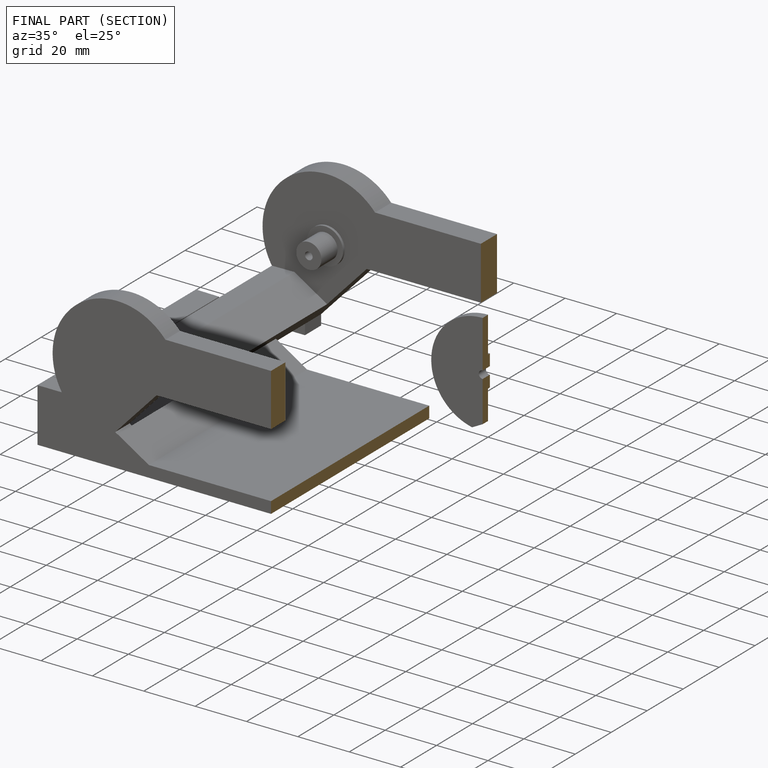
[diagram: finished part — half-section view (interior)]
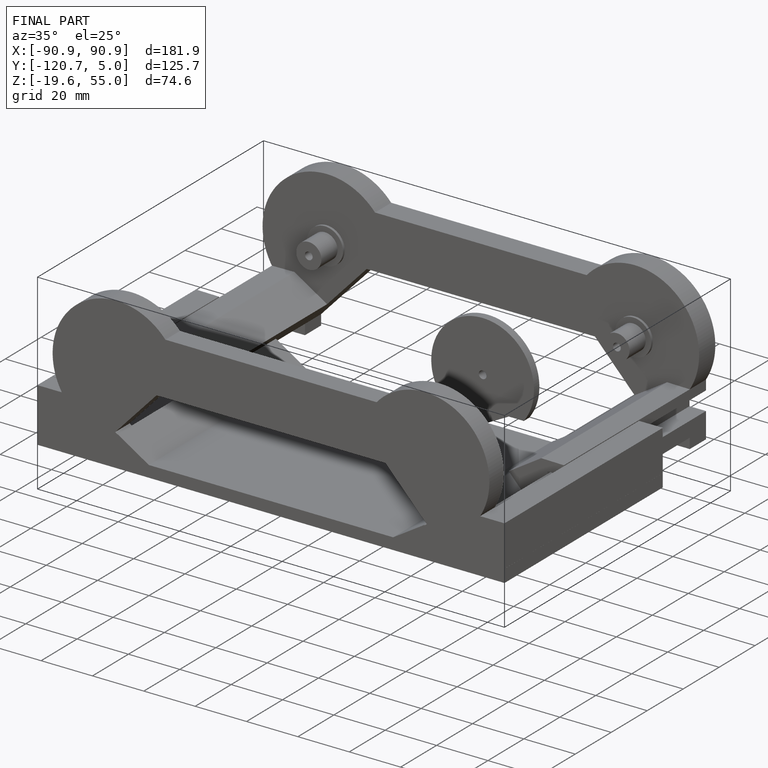
[diagram: finished part — iso view with bounding-box wireframe]
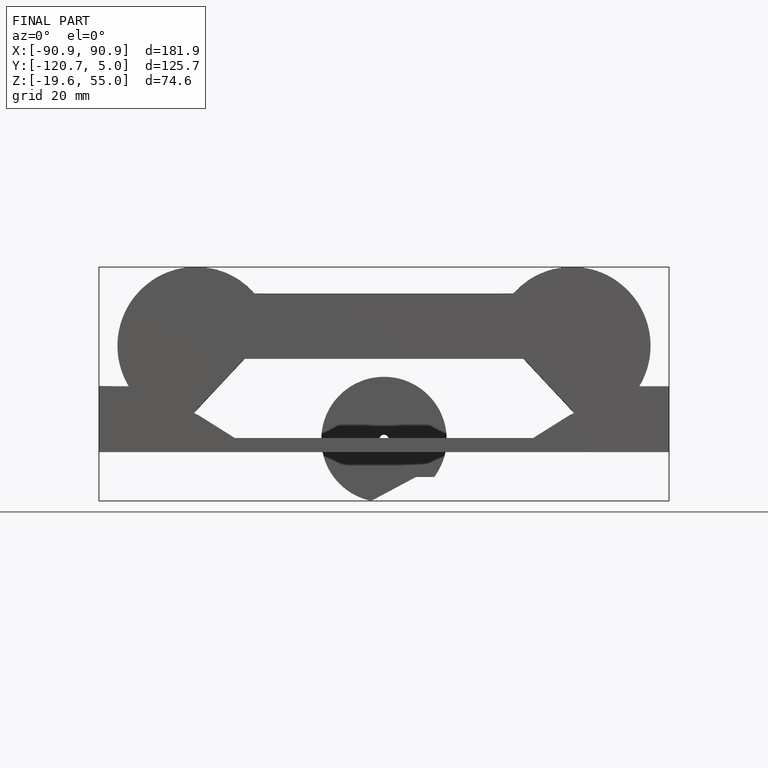
[diagram: finished part — front view with bounding-box wireframe]
